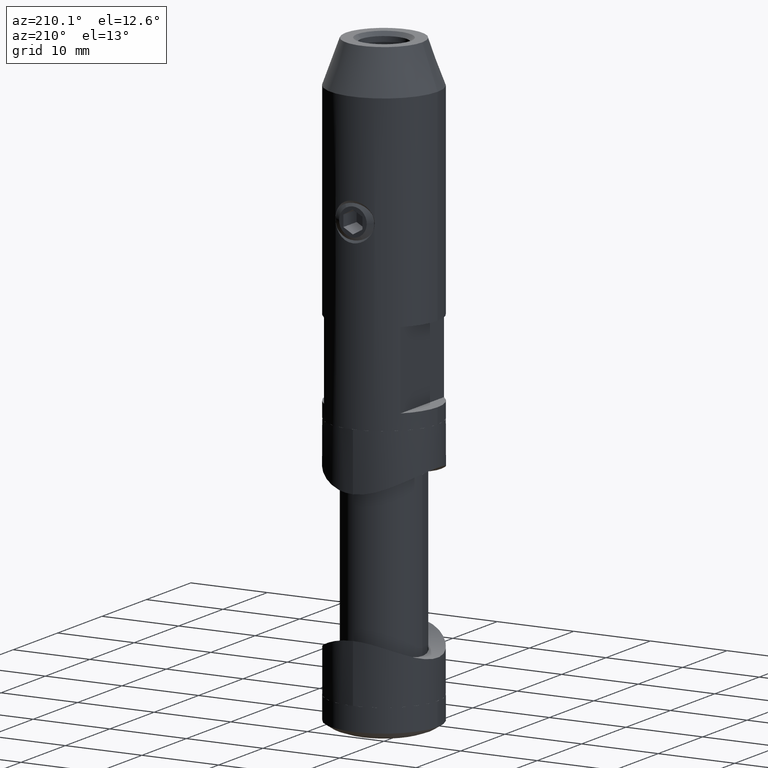
[diagram: clean part render]
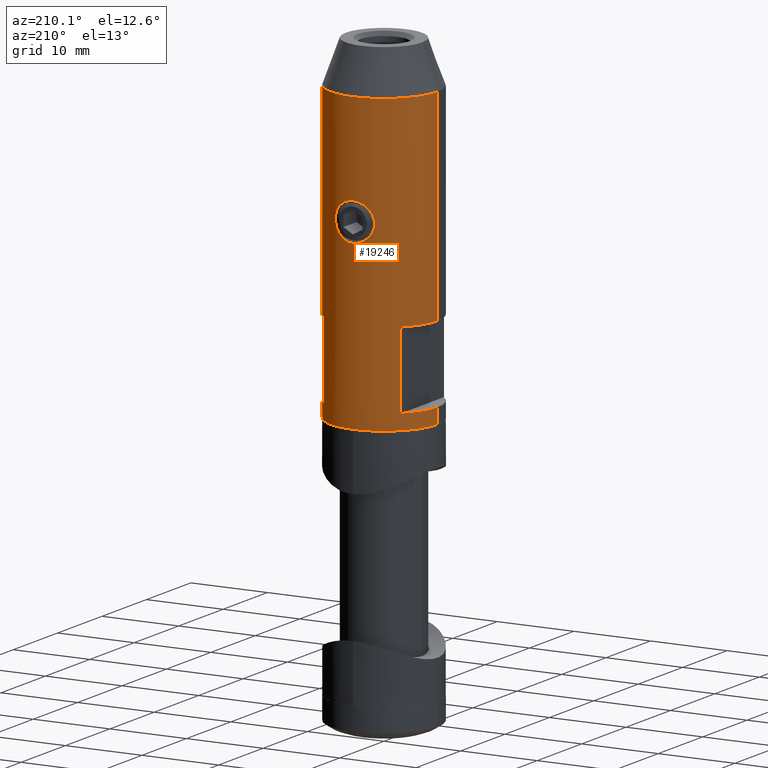
[diagram: same view with one face highlighted and labeled with its STEP entity id]
A machine part, auxiliary view. The second image highlights one B-rep face of the part: STEP entity #19246.
In plain terms, the highlighted cylindrical surface (partial cylindrical patch) has radius 7 mm, axis along (0, 0, 1).
Its self-contained STEP definition (entity closure, byte-faithful):
#25 = CARTESIAN_POINT ( 'NONE',  ( -6.999999999999999112, 8.572527594031472204E-16, -9.999999999999998224 ) ) ;
#134 = EDGE_LOOP ( 'NONE', ( #14091, #8583 ) ) ;
#231 = CARTESIAN_POINT ( 'NONE',  ( 1.285892597745681654, 6.882313393592517592, -0.1343724052109857570 ) ) ;
#280 = CARTESIAN_POINT ( 'NONE',  ( -5.000000000000000000, 4.898979485566353986, -22.00000000000000000 ) ) ;
#521 = DIRECTION ( 'NONE',  ( 0.000000000000000000, 0.000000000000000000, 1.000000000000000000 ) ) ;
#670 = AXIS2_PLACEMENT_3D ( 'NONE', #8715, #12080, #12011 ) ;
#796 = CARTESIAN_POINT ( 'NONE',  ( 2.472464105269671641, 6.548907857836727686, 1.354618547948950091 ) ) ;
#871 = CARTESIAN_POINT ( 'NONE',  ( 1.560494960162802425, 6.825295062409356461, 3.957031071769586461 ) ) ;
#977 = VECTOR ( 'NONE', #8144, 1000.000000000000000 ) ;
#1049 = CARTESIAN_POINT ( 'NONE',  ( -2.556314071244862873, 6.516537306470827851, 1.676510724614533210 ) ) ;
#1094 = EDGE_LOOP ( 'NONE', ( #16749, #19205, #11499, #4807, #8955, #19552, #12668, #19310, #3211, #5259, #15275, #19203 ) ) ;
#1293 = VERTEX_POINT ( 'NONE', #18629 ) ;
#1470 = CARTESIAN_POINT ( 'NONE',  ( 0.000000000000000000, 0.000000000000000000, -10.00000000000000000 ) ) ;
#1525 = LINE ( 'NONE', #280, #8390 ) ;
#1551 = AXIS2_PLACEMENT_3D ( 'NONE', #15497, #3160, #14099 ) ;
#1716 = FACE_OUTER_BOUND ( 'NONE', #1094, .T. ) ;
#1735 = VECTOR ( 'NONE', #15483, 1000.000000000000000 ) ;
#1824 = CARTESIAN_POINT ( 'NONE',  ( 1.561140490947645176, 6.825144525069330115, 0.04344933379577207294 ) ) ;
#1906 = AXIS2_PLACEMENT_3D ( 'NONE', #13796, #4790, #14116 ) ;
#1954 = CIRCLE ( 'NONE', #5925, 6.999999999999999112 ) ;
#1964 = CARTESIAN_POINT ( 'NONE',  ( 2.539549858811113836, 6.523184772880142646, 2.322974812171882064 ) ) ;
#2033 = CARTESIAN_POINT ( 'NONE',  ( 6.999999999999999112, 0.000000000000000000, -22.00000000000000000 ) ) ;
#2109 = CARTESIAN_POINT ( 'NONE',  ( 5.000000000000001776, 4.898979485566354874, -19.99999999999999645 ) ) ;
#2122 = B_SPLINE_CURVE_WITH_KNOTS ( 'NONE', 3,
 ( #14270, #6403, #15622, #14212, #6467, #15824, #17416, #8071, #231, #1824, #6265, #19546, #8136, #7006, #796, #18000, #12817, #10273, #6662, #17929, #1964, #8626, #9703, #11301, #7077, #5532, #19617, #10207, #871, #14341, #17564, #8557, #3414, #8206 ),
 .UNSPECIFIED., .F., .F.,
 ( 4, 2, 2, 2, 2, 2, 2, 2, 2, 2, 2, 2, 2, 2, 2, 2, 4 ),
 ( 0.5000000000000000000, 0.5156250000000000000, 0.5312500000000000000, 0.5625000000000000000, 0.5937500000000000000, 0.6250000000000000000, 0.6875000000000000000, 0.7187500000000000000, 0.7343750000000000000, 0.7500000000000000000, 0.7812500000000000000, 0.8125000000000000000, 0.8437500000000000000, 0.8750000000000001110, 0.9062500000000000000, 0.9375000000000000000, 1.000000000000000000 ),
 .UNSPECIFIED. ) ;
#2162 = VERTEX_POINT ( 'NONE', #3018 ) ;
#2673 = CIRCLE ( 'NONE', #1551, 6.999999999999999112 ) ;
#2710 = FACE_BOUND ( 'NONE', #134, .T. ) ;
#2797 = VERTEX_POINT ( 'NONE', #20208 ) ;
#2911 = DIRECTION ( 'NONE',  ( 0.000000000000000000, 0.000000000000000000, 1.000000000000000000 ) ) ;
#3018 = CARTESIAN_POINT ( 'NONE',  ( -5.000000000000000000, 4.898979485566353098, -19.99999999999999645 ) ) ;
#3052 = VECTOR ( 'NONE', #5215, 1000.000000000000000 ) ;
#3160 = DIRECTION ( 'NONE',  ( -0.000000000000000000, -0.000000000000000000, -1.000000000000000000 ) ) ;
#3211 = ORIENTED_EDGE ( 'NONE', *, *, #10979, .F. ) ;
#3218 = CARTESIAN_POINT ( 'NONE',  ( -6.999999999999999112, 8.572527594031472204E-16, -19.99999999999999645 ) ) ;
#3224 = LINE ( 'NONE', #18543, #1735 ) ;
#3414 = CARTESIAN_POINT ( 'NONE',  ( 0.3390679710399101543, 7.000000000000000888, 4.462748086040751794 ) ) ;
#3493 = DIRECTION ( 'NONE',  ( 0.000000000000000000, 0.000000000000000000, 1.000000000000000000 ) ) ;
#3978 = EDGE_CURVE ( 'NONE', #18720, #4763, #2122, .T. ) ;
#4050 = DIRECTION ( 'NONE',  ( 3.469446951953616161E-16, -0.000000000000000000, -1.000000000000000000 ) ) ;
#4184 = CARTESIAN_POINT ( 'NONE',  ( -1.137060128276046633, 6.908783097739151557, -0.2114853083706748071 ) ) ;
#4253 = CARTESIAN_POINT ( 'NONE',  ( -2.031040615605190780, 6.699573880545169224, 0.4962684278768211277 ) ) ;
#4721 = EDGE_CURVE ( 'NONE', #2797, #12874, #10407, .T. ) ;
#4763 = VERTEX_POINT ( 'NONE', #13533 ) ;
#4790 = DIRECTION ( 'NONE',  ( 0.000000000000000000, -0.000000000000000000, 1.000000000000000000 ) ) ;
#4807 = ORIENTED_EDGE ( 'NONE', *, *, #7566, .F. ) ;
#5066 = EDGE_CURVE ( 'NONE', #2162, #12874, #9414, .T. ) ;
#5215 = DIRECTION ( 'NONE',  ( 0.000000000000000000, 0.000000000000000000, 1.000000000000000000 ) ) ;
#5226 = CARTESIAN_POINT ( 'NONE',  ( -6.999999999999999112, 8.572527594031472204E-16, 16.50000000000000000 ) ) ;
#5259 = ORIENTED_EDGE ( 'NONE', *, *, #9064, .F. ) ;
#5387 = EDGE_CURVE ( 'NONE', #9813, #5887, #19669, .T. ) ;
#5532 = CARTESIAN_POINT ( 'NONE',  ( 2.030665807255847000, 6.699685889634786840, 3.504159109999594790 ) ) ;
#5693 = CYLINDRICAL_SURFACE ( 'NONE', #9392, 6.999999999999999112 ) ;
#5699 = CARTESIAN_POINT ( 'NONE',  ( -1.563174785775369280, 6.824712682847975387, 0.04481139207208998526 ) ) ;
#5756 = CARTESIAN_POINT ( 'NONE',  ( -2.294656911943390387, 6.613565475190124054, 3.096839199869177328 ) ) ;
#5830 = CARTESIAN_POINT ( 'NONE',  ( -0.0009357021836059671886, 6.999999937461528710, -0.4627436976333623719 ) ) ;
#5887 = VERTEX_POINT ( 'NONE', #14716 ) ;
#5923 = CIRCLE ( 'NONE', #13246, 6.999999999999999112 ) ;
#5925 = AXIS2_PLACEMENT_3D ( 'NONE', #9892, #4050, #8670 ) ;
#5962 = CARTESIAN_POINT ( 'NONE',  ( -2.215969050722335520, 6.640700063198285541, 0.7622328809857485954 ) ) ;
#6265 = CARTESIAN_POINT ( 'NONE',  ( 1.689257653249903290, 6.794212522695124434, 0.1447886506262759665 ) ) ;
#6403 = CARTESIAN_POINT ( 'NONE',  ( 0.08325123041673870850, 7.000011190875438771, -0.4627748392866672389 ) ) ;
#6467 = CARTESIAN_POINT ( 'NONE',  ( 0.4203461257747667656, 6.987854089920633172, -0.4305551536360092690 ) ) ;
#6535 = CARTESIAN_POINT ( 'NONE',  ( 0.000000000000000000, 0.000000000000000000, -22.00000000000000000 ) ) ;
#6605 = CARTESIAN_POINT ( 'NONE',  ( -6.999999999999999112, 8.572527594031472204E-16, -22.00000000000000000 ) ) ;
#6662 = CARTESIAN_POINT ( 'NONE',  ( 2.555991024159313785, 6.516664015097378915, 1.918670921953973485 ) ) ;
#7006 = CARTESIAN_POINT ( 'NONE',  ( 2.423890323342688724, 6.567301360219769180, 1.201901164711729919 ) ) ;
#7077 = CARTESIAN_POINT ( 'NONE',  ( 2.215386992868883631, 6.640892644242704534, 3.238715197072706609 ) ) ;
#7206 = VERTEX_POINT ( 'NONE', #8565 ) ;
#7371 = CARTESIAN_POINT ( 'NONE',  ( -2.555878103395077261, 6.516708305958863079, 2.164142008023978825 ) ) ;
#7390 = LINE ( 'NONE', #2033, #18878 ) ;
#7465 = VERTEX_POINT ( 'NONE', #25 ) ;
#7506 = CARTESIAN_POINT ( 'NONE',  ( -1.573992526827780569, 6.825050090417892790, 3.966483920779072747 ) ) ;
#7566 = EDGE_CURVE ( 'NONE', #7206, #2162, #1525, .T. ) ;
#7593 = DIRECTION ( 'NONE',  ( -3.469446951953616161E-16, -0.000000000000000000, -1.000000000000000000 ) ) ;
#8071 = CARTESIAN_POINT ( 'NONE',  ( 1.137004795737103002, 6.908814826136662646, -0.2115918377312379639 ) ) ;
#8136 = CARTESIAN_POINT ( 'NONE',  ( 2.230431745099334062, 6.636560860310718901, 0.7545520608123135187 ) ) ;
#8144 = DIRECTION ( 'NONE',  ( 0.000000000000000000, 0.000000000000000000, 1.000000000000000000 ) ) ;
#8206 = CARTESIAN_POINT ( 'NONE',  ( 3.447562637279490573E-16, 6.999999999999999112, 4.462743862652648552 ) ) ;
#8319 = VERTEX_POINT ( 'NONE', #15644 ) ;
#8390 = VECTOR ( 'NONE', #11292, 1000.000000000000000 ) ;
#8454 = CARTESIAN_POINT ( 'NONE',  ( -6.999999999999999112, 8.572527594031472204E-16, -22.00000000000000000 ) ) ;
#8533 = CARTESIAN_POINT ( 'NONE',  ( 3.447562637279490573E-16, 6.999999999999999112, 4.462743862652648552 ) ) ;
#8557 = CARTESIAN_POINT ( 'NONE',  ( 0.6725155659000677799, 6.974718230161161436, 4.398125981746543012 ) ) ;
#8565 = CARTESIAN_POINT ( 'NONE',  ( -5.000000000000000000, 4.898979485566354874, -9.999999999999998224 ) ) ;
#8583 = ORIENTED_EDGE ( 'NONE', *, *, #3978, .T. ) ;
#8626 = CARTESIAN_POINT ( 'NONE',  ( 2.473446768734312240, 6.548535267428944984, 2.641926479429744123 ) ) ;
#8670 = DIRECTION ( 'NONE',  ( 1.000000000000000000, 8.881784197001251337E-16, 2.478176394252581634E-16 ) ) ;
#8680 = VECTOR ( 'NONE', #10065, 1000.000000000000000 ) ;
#8715 = CARTESIAN_POINT ( 'NONE',  ( 0.000000000000000000, 0.000000000000000000, -19.99999999999999645 ) ) ;
#8869 = CARTESIAN_POINT ( 'NONE',  ( -1.923856194976708123, 6.731523770461752321, 0.3707528966097857759 ) ) ;
#8955 = ORIENTED_EDGE ( 'NONE', *, *, #9635, .F. ) ;
#9064 = EDGE_CURVE ( 'NONE', #10221, #1293, #3224, .T. ) ;
#9075 = CARTESIAN_POINT ( 'NONE',  ( -0.3376834325849838447, 6.999954923805889351, -0.4626191310201436258 ) ) ;
#9392 = AXIS2_PLACEMENT_3D ( 'NONE', #6535, #3493, #9581 ) ;
#9414 = CIRCLE ( 'NONE', #670, 6.999999999999999112 ) ;
#9581 = DIRECTION ( 'NONE',  ( 1.000000000000000000, 0.000000000000000000, 0.000000000000000000 ) ) ;
#9635 = EDGE_CURVE ( 'NONE', #7465, #7206, #12793, .T. ) ;
#9703 = CARTESIAN_POINT ( 'NONE',  ( 2.423593263342006310, 6.567405257598613488, 2.798681663154943600 ) ) ;
#9813 = VERTEX_POINT ( 'NONE', #15429 ) ;
#9892 = CARTESIAN_POINT ( 'NONE',  ( 0.000000000000000000, 0.000000000000000000, -10.00000000000000000 ) ) ;
#10065 = DIRECTION ( 'NONE',  ( 0.000000000000000000, 0.000000000000000000, 1.000000000000000000 ) ) ;
#10180 = CARTESIAN_POINT ( 'NONE',  ( -0.1690796777121635897, 7.000000000000000888, 4.462741756617400135 ) ) ;
#10199 = EDGE_CURVE ( 'NONE', #8319, #15437, #7390, .T. ) ;
#10207 = CARTESIAN_POINT ( 'NONE',  ( 1.690311121191376165, 6.793944621341525547, 3.854300278051900452 ) ) ;
#10221 = VERTEX_POINT ( 'NONE', #2109 ) ;
#10273 = CARTESIAN_POINT ( 'NONE',  ( 2.551765471653077544, 6.518326072164056129, 1.836108340999672794 ) ) ;
#10407 = LINE ( 'NONE', #8454, #3052 ) ;
#10454 = CARTESIAN_POINT ( 'NONE',  ( -2.216670624058356243, 6.640470924685164533, 3.236684045716800018 ) ) ;
#10662 = CARTESIAN_POINT ( 'NONE',  ( -2.539238392364965957, 6.523305715872778521, 2.324984663166206555 ) ) ;
#10727 = CARTESIAN_POINT ( 'NONE',  ( 0.000000000000000000, 0.000000000000000000, -22.00000000000000000 ) ) ;
#10979 = EDGE_CURVE ( 'NONE', #1293, #8319, #1954, .T. ) ;
#11119 = EDGE_CURVE ( 'NONE', #9813, #2797, #5923, .T. ) ;
#11269 = B_SPLINE_CURVE_WITH_KNOTS ( 'NONE', 3,
 ( #8533, #10180, #11771, #13341, #14932, #14869, #7506, #16845, #18432, #10454, #5756, #12042, #19731, #15065, #16708, #10662, #7371, #1049, #12108, #14989, #5962, #4253, #8869, #18172, #5699, #12247, #4184, #15121, #9075, #5830 ),
 .UNSPECIFIED., .F., .F.,
 ( 4, 2, 2, 2, 2, 2, 2, 2, 2, 2, 2, 2, 2, 2, 4 ),
 ( 0.000000000000000000, 0.03125000000000013184, 0.06250000000000024980, 0.1250000000000003886, 0.1562500000000004163, 0.1875000000000003886, 0.2031250000000004163, 0.2187500000000004163, 0.2500000000000003331, 0.3125000000000002776, 0.3437500000000002220, 0.3750000000000001665, 0.4062500000000001665, 0.4375000000000001110, 0.5000000000000000000 ),
 .UNSPECIFIED. ) ;
#11292 = DIRECTION ( 'NONE',  ( -0.000000000000000000, -0.000000000000000000, -1.000000000000000000 ) ) ;
#11301 = CARTESIAN_POINT ( 'NONE',  ( 2.295662093026309858, 6.613210391201288729, 3.094714550713174805 ) ) ;
#11499 = ORIENTED_EDGE ( 'NONE', *, *, #5066, .F. ) ;
#11771 = CARTESIAN_POINT ( 'NONE',  ( -0.3369396113131885029, 6.993842636062470142, 4.446627315451619822 ) ) ;
#12011 = DIRECTION ( 'NONE',  ( -1.000000000000000000, -2.664535259100375303E-15, 0.000000000000000000 ) ) ;
#12042 = CARTESIAN_POINT ( 'NONE',  ( -2.391461328207879600, 6.578912324634314857, 2.873134653334598276 ) ) ;
#12080 = DIRECTION ( 'NONE',  ( -0.000000000000000000, 0.000000000000000000, 1.000000000000000000 ) ) ;
#12108 = CARTESIAN_POINT ( 'NONE',  ( -2.487871052011292328, 6.544395076353353602, 1.349885963802030631 ) ) ;
#12247 = CARTESIAN_POINT ( 'NONE',  ( -1.284736600557304653, 6.882562784421099700, -0.1351668944735925360 ) ) ;
#12280 = CARTESIAN_POINT ( 'NONE',  ( -0.0009357021836059671886, 6.999999937461528710, -0.4627436976333623719 ) ) ;
#12403 = DIRECTION ( 'NONE',  ( 1.000000000000000000, 1.776356839400250267E-15, -2.478176394252581634E-16 ) ) ;
#12668 = ORIENTED_EDGE ( 'NONE', *, *, #12885, .T. ) ;
#12793 = CIRCLE ( 'NONE', #13096, 6.999999999999999112 ) ;
#12817 = CARTESIAN_POINT ( 'NONE',  ( 2.534912447193810259, 6.524898519550814235, 1.673788389827953527 ) ) ;
#12874 = VERTEX_POINT ( 'NONE', #3218 ) ;
#12885 = EDGE_CURVE ( 'NONE', #13530, #15437, #2673, .T. ) ;
#13096 = AXIS2_PLACEMENT_3D ( 'NONE', #1470, #7593, #12403 ) ;
#13246 = AXIS2_PLACEMENT_3D ( 'NONE', #10727, #2911, #13795 ) ;
#13341 = CARTESIAN_POINT ( 'NONE',  ( -0.6669240415390595977, 6.970120188525759986, 4.382958432135914961 ) ) ;
#13530 = VERTEX_POINT ( 'NONE', #5226 ) ;
#13533 = CARTESIAN_POINT ( 'NONE',  ( 3.447562637279490573E-16, 6.999999999999999112, 4.462743862652648552 ) ) ;
#13795 = DIRECTION ( 'NONE',  ( 1.000000000000000000, 0.000000000000000000, 0.000000000000000000 ) ) ;
#13796 = CARTESIAN_POINT ( 'NONE',  ( 0.000000000000000000, 0.000000000000000000, -19.99999999999999645 ) ) ;
#14091 = ORIENTED_EDGE ( 'NONE', *, *, #19892, .T. ) ;
#14099 = DIRECTION ( 'NONE',  ( -1.000000000000000000, 0.000000000000000000, 0.000000000000000000 ) ) ;
#14116 = DIRECTION ( 'NONE',  ( -1.000000000000000000, 0.000000000000000000, 0.000000000000000000 ) ) ;
#14179 = LINE ( 'NONE', #6605, #977 ) ;
#14212 = CARTESIAN_POINT ( 'NONE',  ( 0.3355232798078053857, 6.992463725076981440, -0.4428010932025979729 ) ) ;
#14270 = CARTESIAN_POINT ( 'NONE',  ( -0.0009357021836059671886, 6.999999937461528710, -0.4627436976333623719 ) ) ;
#14341 = CARTESIAN_POINT ( 'NONE',  ( 1.284963476165270180, 6.882489816524562265, 4.134908928211468826 ) ) ;
#14631 = CARTESIAN_POINT ( 'NONE',  ( 6.999999999999999112, 0.000000000000000000, -22.00000000000000000 ) ) ;
#14716 = CARTESIAN_POINT ( 'NONE',  ( 6.999999999999999112, 0.000000000000000000, -19.99999999999999645 ) ) ;
#14869 = CARTESIAN_POINT ( 'NONE',  ( -1.291706175661196943, 6.886799833814830407, 4.149250733226599763 ) ) ;
#14932 = CARTESIAN_POINT ( 'NONE',  ( -0.8303272281579284764, 6.952315146265874546, 4.334704581453492800 ) ) ;
#14989 = CARTESIAN_POINT ( 'NONE',  ( -2.295221385764265598, 6.613366095419094037, 0.9043514941208229407 ) ) ;
#15065 = CARTESIAN_POINT ( 'NONE',  ( -2.469010094115750675, 6.550166902029578964, 2.642323798393229062 ) ) ;
#15121 = CARTESIAN_POINT ( 'NONE',  ( -0.6750938916593763883, 6.974310485283083061, -0.3969532378004109741 ) ) ;
#15275 = ORIENTED_EDGE ( 'NONE', *, *, #20025, .F. ) ;
#15429 = CARTESIAN_POINT ( 'NONE',  ( 6.999999999999999112, 0.000000000000000000, -22.00000000000000000 ) ) ;
#15437 = VERTEX_POINT ( 'NONE', #18327 ) ;
#15483 = DIRECTION ( 'NONE',  ( 0.000000000000000000, 0.000000000000000000, 1.000000000000000000 ) ) ;
#15497 = CARTESIAN_POINT ( 'NONE',  ( 0.000000000000000000, 0.000000000000000000, 16.50000000000000000 ) ) ;
#15622 = CARTESIAN_POINT ( 'NONE',  ( 0.1668147163597772931, 6.998521105792010921, -0.4588484197094386263 ) ) ;
#15644 = CARTESIAN_POINT ( 'NONE',  ( 6.999999999999999112, 0.000000000000000000, -9.999999999999998224 ) ) ;
#15824 = CARTESIAN_POINT ( 'NONE',  ( 0.6670150684610913761, 6.970098527879166284, -0.3828991564470105580 ) ) ;
#16708 = CARTESIAN_POINT ( 'NONE',  ( -2.489739326835040512, 6.542286324627704097, 2.563057035237260806 ) ) ;
#16749 = ORIENTED_EDGE ( 'NONE', *, *, #11119, .T. ) ;
#16845 = CARTESIAN_POINT ( 'NONE',  ( -1.925262975880589700, 6.731125669344550033, 3.627748742816088168 ) ) ;
#17348 = CIRCLE ( 'NONE', #1906, 6.999999999999999112 ) ;
#17416 = CARTESIAN_POINT ( 'NONE',  ( 0.8270371759866163019, 6.952734118094191729, -0.3358669079684036829 ) ) ;
#17564 = CARTESIAN_POINT ( 'NONE',  ( 1.139726218131332347, 6.908383822706589683, 4.210345861080732277 ) ) ;
#17929 = CARTESIAN_POINT ( 'NONE',  ( 2.556089690275011428, 6.516625315319432232, 2.161176513762440798 ) ) ;
#18000 = CARTESIAN_POINT ( 'NONE',  ( 2.522434001811110438, 6.529750755356426239, 1.593818422110452326 ) ) ;
#18172 = CARTESIAN_POINT ( 'NONE',  ( -1.690106648411400903, 6.793980751241313065, 0.1456298191775557693 ) ) ;
#18327 = CARTESIAN_POINT ( 'NONE',  ( 6.999999999999999112, 0.000000000000000000, 16.50000000000000000 ) ) ;
#18432 = CARTESIAN_POINT ( 'NONE',  ( -2.031092743735758432, 6.699563047206601674, 3.503730399894635195 ) ) ;
#18543 = CARTESIAN_POINT ( 'NONE',  ( 5.000000000000000000, 4.898979485566353986, -22.00000000000000000 ) ) ;
#18629 = CARTESIAN_POINT ( 'NONE',  ( 4.999999999999998224, 4.898979485566355763, -9.999999999999998224 ) ) ;
#18720 = VERTEX_POINT ( 'NONE', #12280 ) ;
#18878 = VECTOR ( 'NONE', #521, 1000.000000000000000 ) ;
#19203 = ORIENTED_EDGE ( 'NONE', *, *, #5387, .F. ) ;
#19205 = ORIENTED_EDGE ( 'NONE', *, *, #4721, .T. ) ;
#19246 = ADVANCED_FACE ( 'NONE', ( #2710, #1716 ), #5693, .T. ) ;
#19310 = ORIENTED_EDGE ( 'NONE', *, *, #10199, .F. ) ;
#19335 = EDGE_CURVE ( 'NONE', #7465, #13530, #14179, .T. ) ;
#19546 = CARTESIAN_POINT ( 'NONE',  ( 2.043219977383943675, 6.699620363458039130, 0.4857586971226620642 ) ) ;
#19552 = ORIENTED_EDGE ( 'NONE', *, *, #19335, .T. ) ;
#19617 = CARTESIAN_POINT ( 'NONE',  ( 1.925645345025242205, 6.731027054578026636, 3.627395930680620939 ) ) ;
#19669 = LINE ( 'NONE', #14631, #8680 ) ;
#19731 = CARTESIAN_POINT ( 'NONE',  ( -2.419521885021085783, 6.568608006053738180, 2.798202448092687256 ) ) ;
#19892 = EDGE_CURVE ( 'NONE', #4763, #18720, #11269, .T. ) ;
#20025 = EDGE_CURVE ( 'NONE', #5887, #10221, #17348, .T. ) ;
#20208 = CARTESIAN_POINT ( 'NONE',  ( -6.999999999999999112, 8.572527594031472204E-16, -22.00000000000000000 ) ) ;